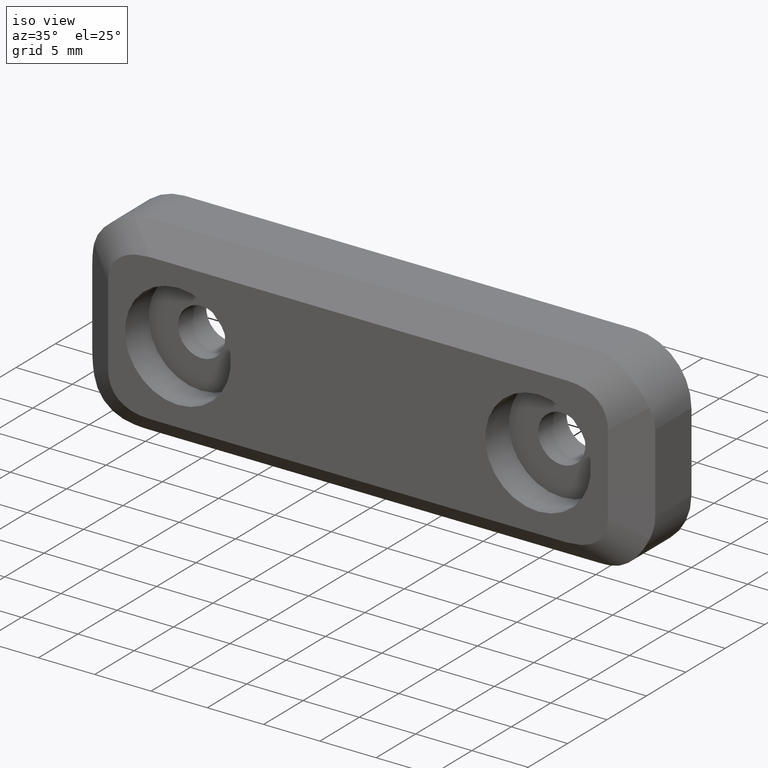
[diagram: clean part render]
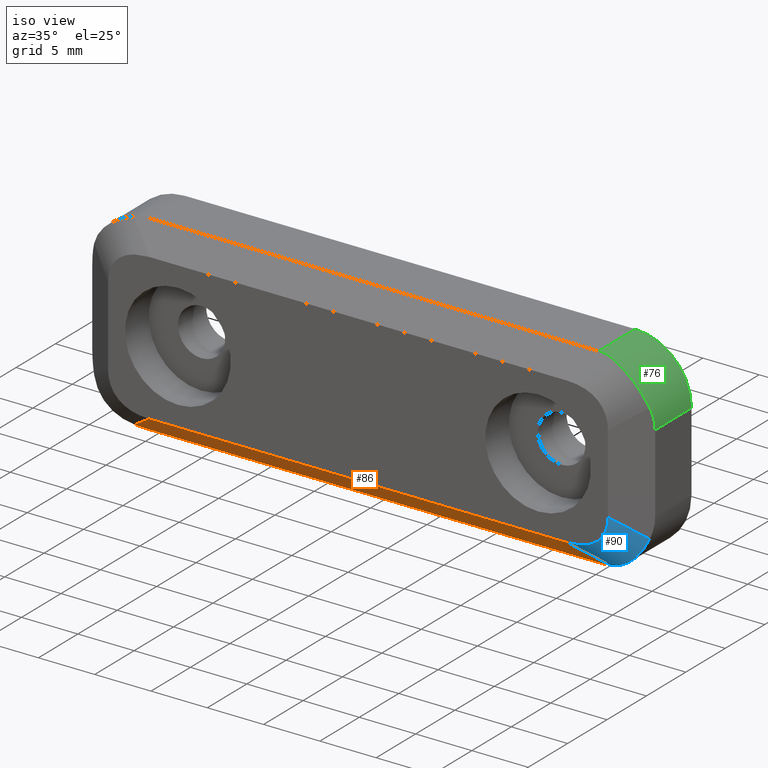
[diagram: same view with three faces highlighted in distinct colors, each labeled with its STEP entity id]
A machine part, iso view with three faces highlighted in distinct colors.
Their STEP definitions:

[orange] entity #86 — the highlighted planar face has unit normal (0, 0.7071, 0.7071).
#86=ADVANCED_FACE('',(#219),#218,.F.);
#218=PLANE('',#452);
#219=FACE_OUTER_BOUND('',#453,.T.);
#449=CARTESIAN_POINT('',(-2.53887898418E+01,-4.40000000000E+00,-8.70000000000E+00));
#450=DIRECTION('',(0.00000000000E+00,7.07106781187E-01,7.07106781187E-01));
#451=DIRECTION('',(0.00000000000E+00,-7.07106781187E-01,7.07106781187E-01));
#452=AXIS2_PLACEMENT_3D('',#449,#450,#451);
#453=EDGE_LOOP('',(#601,#602,#603,#604,#605,#606));
#601=ORIENTED_EDGE('',*,*,#732,.F.);
#602=ORIENTED_EDGE('',*,*,#679,.T.);
#603=ORIENTED_EDGE('',*,*,#733,.T.);
#604=ORIENTED_EDGE('',*,*,#723,.F.);
#605=ORIENTED_EDGE('',*,*,#701,.T.);
#606=ORIENTED_EDGE('',*,*,#707,.T.);
#679=EDGE_CURVE('',#751,#752,#753,.T.);
#701=EDGE_CURVE('',#884,#898,#905,.T.);
#707=EDGE_CURVE('',#898,#939,#947,.T.);
#723=EDGE_CURVE('',#884,#1052,#1053,.T.);
#732=EDGE_CURVE('',#751,#939,#1112,.T.);
#733=EDGE_CURVE('',#752,#1052,#1118,.T.);
#751=VERTEX_POINT('',#1231);
#752=VERTEX_POINT('',#1232);
#753=(BOUNDED_CURVE() B_SPLINE_CURVE(2,(#1233,#1234,#1235),.UNSPECIFIED.,.F.,.F.) B_SPLINE_CURVE_WITH_KNOTS((3,3),(-6.28318530718E+00,-6.04960202528E+00),.UNSPECIFIED.) CURVE() GEOMETRIC_REPRESENTATION_ITEM() RATIONAL_B_SPLINE_CURVE((1.00000000000E+00,9.93187605171E-01,1.00000000000E+00)) REPRESENTATION_ITEM('') );
#884=VERTEX_POINT('',#1342);
#898=VERTEX_POINT('',#1350);
#905=LINE('',#1365,#1366);
#939=VERTEX_POINT('',#1388);
#947=(BOUNDED_CURVE() B_SPLINE_CURVE(2,(#1393,#1394,#1395),.UNSPECIFIED.,.F.,.F.) B_SPLINE_CURVE_WITH_KNOTS((3,3),(-2.33583281902E-01,-0.00000000000E+00),.UNSPECIFIED.) CURVE() GEOMETRIC_REPRESENTATION_ITEM() RATIONAL_B_SPLINE_CURVE((1.00000000000E+00,9.93187605171E-01,1.00000000000E+00)) REPRESENTATION_ITEM('') );
#1052=VERTEX_POINT('',#1456);
#1053=LINE('',#1457,#1458);
#1112=LINE('',#1493,#1494);
#1118=LINE('',#1496,#1497);
#1231=CARTESIAN_POINT('',(2.00000000000E+01,-4.60000000000E+00,-8.50000000000E+00));
#1232=CARTESIAN_POINT('',(2.11573248682E+01,-4.73578380934E+00,-8.36421619066E+00));
#1233=CARTESIAN_POINT('',(2.00000000000E+01,-4.60000000000E+00,-8.50000000000E+00));
#1234=CARTESIAN_POINT('',(2.05866278911E+01,-4.60000000000E+00,-8.50000000000E+00));
#1235=CARTESIAN_POINT('',(2.11573248682E+01,-4.73578380934E+00,-8.36421619066E+00));
#1342=CARTESIAN_POINT('',(-1.85474222013E+01,-6.60000000000E+00,-6.50000000000E+00));
#1350=CARTESIAN_POINT('',(-2.11573248682E+01,-4.73578380934E+00,-8.36421619066E+00));
#1365=CARTESIAN_POINT('',(-1.85474222013E+01,-6.60000000000E+00,-6.50000000000E+00));
#1366=VECTOR('',#1367,3.70974337951E+00);
#1367=DIRECTION('',(-7.03526470682E-01,5.02518907630E-01,-5.02518907630E-01));
#1388=CARTESIAN_POINT('',(-2.00000000000E+01,-4.60000000000E+00,-8.50000000000E+00));
#1393=CARTESIAN_POINT('',(-2.11573248682E+01,-4.73578380934E+00,-8.36421619066E+00));
#1394=CARTESIAN_POINT('',(-2.05866278911E+01,-4.60000000000E+00,-8.50000000000E+00));
#1395=CARTESIAN_POINT('',(-2.00000000000E+01,-4.60000000000E+00,-8.50000000000E+00));
#1456=CARTESIAN_POINT('',(1.85474222013E+01,-6.60000000000E+00,-6.50000000000E+00));
#1457=CARTESIAN_POINT('',(-1.85474222013E+01,-6.60000000000E+00,-6.50000000000E+00));
#1458=VECTOR('',#1459,3.70948444025E+01);
#1459=DIRECTION('',(1.00000000000E+00,0.00000000000E+00,0.00000000000E+00));
#1493=CARTESIAN_POINT('',(2.00000000000E+01,-4.60000000000E+00,-8.50000000000E+00));
#1494=VECTOR('',#1495,4.00000000000E+01);
#1495=DIRECTION('',(-1.00000000000E+00,0.00000000000E+00,0.00000000000E+00));
#1496=CARTESIAN_POINT('',(2.11573248682E+01,-4.73578380934E+00,-8.36421619066E+00));
#1497=VECTOR('',#1498,3.70974337951E+00);
#1498=DIRECTION('',(-7.03526470682E-01,-5.02518907630E-01,5.02518907630E-01));

[blue] entity #90 — the highlighted cylindrical surface (partial cylindrical patch) has radius 5 mm, axis along (0.7035, 0.5025, -0.5025).
#90=ADVANCED_FACE('',(#259),#258,.T.);
#258=CYLINDRICAL_SURFACE('',#472,5.00000000000E+00);
#259=FACE_OUTER_BOUND('',#473,.T.);
#469=CARTESIAN_POINT('',(9.36738495013E+00,-9.62163555916E+00,3.59270337102E+00));
#470=DIRECTION('',(7.03526470682E-01,5.02518907630E-01,-5.02518907630E-01));
#471=DIRECTION('',(-5.81238193719E-01,-8.36862092340E-17,-8.13733471207E-01));
#472=AXIS2_PLACEMENT_3D('',#469,#470,#471);
#473=EDGE_LOOP('',(#625,#626,#627,#628));
#625=ORIENTED_EDGE('',*,*,#724,.F.);
#626=ORIENTED_EDGE('',*,*,#733,.F.);
#627=ORIENTED_EDGE('',*,*,#684,.F.);
#628=ORIENTED_EDGE('',*,*,#735,.F.);
#684=EDGE_CURVE('',#780,#752,#787,.T.);
#724=EDGE_CURVE('',#1052,#1059,#1060,.T.);
#733=EDGE_CURVE('',#752,#1052,#1118,.T.);
#735=EDGE_CURVE('',#1059,#780,#1130,.T.);
#752=VERTEX_POINT('',#1232);
#780=VERTEX_POINT('',#1249);
#787=(BOUNDED_CURVE() B_SPLINE_CURVE(3,(#1253,#1254,#1255,#1256,#1257,#1258,#1259,#1260,#1261,#1262,#1263,#1264,#1265,#1266),.UNSPECIFIED.,.F.,.F.) B_SPLINE_CURVE_WITH_KNOTS((4,2,2,2,2,2,4),(-4.90824634323E-03,-3.68118475742E-03,-3.06765396452E-03,-2.45412317161E-03,-1.84059237871E-03,-1.22706158581E-03,-0.00000000000E+00),.UNSPECIFIED.) CURVE() GEOMETRIC_REPRESENTATION_ITEM() RATIONAL_B_SPLINE_CURVE((1.00000000000E+00,1.00000000000E+00,1.00000000000E+00,1.00000000000E+00,1.00000000000E+00,1.00000000000E+00,1.00000000000E+00,1.00000000000E+00,1.00000000000E+00,1.00000000000E+00,1.00000000000E+00,1.00000000000E+00,1.00000000000E+00,1.00000000000E+00)) REPRESENTATION_ITEM('') );
#1052=VERTEX_POINT('',#1456);
#1059=VERTEX_POINT('',#1460);
#1060=(BOUNDED_CURVE() B_SPLINE_CURVE(2,(#1461,#1462,#1463),.UNSPECIFIED.,.F.,.F.) B_SPLINE_CURVE_WITH_KNOTS((3,3),(-3.75468145783E+00,-2.79697393528E+00),.UNSPECIFIED.) CURVE() GEOMETRIC_REPRESENTATION_ITEM() RATIONAL_B_SPLINE_CURVE((1.00000000000E+00,8.87523649141E-01,1.00000000000E+00)) REPRESENTATION_ITEM('') );
#1118=LINE('',#1496,#1497);
#1130=LINE('',#1502,#1503);
#1232=CARTESIAN_POINT('',(2.11573248682E+01,-4.73578380934E+00,-8.36421619066E+00));
#1249=CARTESIAN_POINT('',(2.46773188492E+01,-4.83048653627E+00,-5.26711300790E+00));
#1253=CARTESIAN_POINT('',(2.46773188492E+01,-4.83048653627E+00,-5.26711300790E+00));
#1254=CARTESIAN_POINT('',(2.45351442278E+01,-4.93203983728E+00,-5.64343078364E+00));
#1255=CARTESIAN_POINT('',(2.43467551379E+01,-5.00360393431E+00,-6.00432384448E+00));
#1256=CARTESIAN_POINT('',(2.39997594650E+01,-5.06739078605E+00,-6.50722525908E+00));
#1257=CARTESIAN_POINT('',(2.38720524416E+01,-5.08153356373E+00,-6.67014865487E+00));
#1258=CARTESIAN_POINT('',(2.35974899388E+01,-5.09522816680E+00,-6.97860586221E+00));
#1259=CARTESIAN_POINT('',(2.34520539393E+01,-5.09482975938E+00,-7.12283673382E+00));
#1260=CARTESIAN_POINT('',(2.31454236184E+01,-5.08093658207E+00,-7.39203451432E+00));
#1261=CARTESIAN_POINT('',(2.29842279747E+01,-5.06743344982E+00,-7.51699935949E+00));
#1262=CARTESIAN_POINT('',(2.26458862919E+01,-5.02816918211E+00,-7.74749175272E+00));
#1263=CARTESIAN_POINT('',(2.24680511663E+01,-5.00221437089E+00,-7.85315268349E+00));
#1264=CARTESIAN_POINT('',(2.19264859450E+01,-4.91010391662E+00,-8.13179352795E+00));
#1265=CARTESIAN_POINT('',(2.15500378682E+01,-4.82922055293E+00,-8.27077944707E+00));
#1266=CARTESIAN_POINT('',(2.11573248682E+01,-4.73578380934E+00,-8.36421619066E+00));
#1456=CARTESIAN_POINT('',(1.85474222013E+01,-6.60000000000E+00,-6.50000000000E+00));
#1460=CARTESIAN_POINT('',(2.22000000000E+01,-6.60000000000E+00,-3.49759954417E+00));
#1461=CARTESIAN_POINT('',(1.85474222013E+01,-6.60000000000E+00,-6.50000000000E+00));
#1462=CARTESIAN_POINT('',(2.22000000000E+01,-6.60000000000E+00,-6.50000000000E+00));
#1463=CARTESIAN_POINT('',(2.22000000000E+01,-6.60000000000E+00,-3.49759954417E+00));
#1496=CARTESIAN_POINT('',(2.11573248682E+01,-4.73578380934E+00,-8.36421619066E+00));
#1497=VECTOR('',#1498,3.70974337951E+00);
#1498=DIRECTION('',(-7.03526470682E-01,-5.02518907630E-01,5.02518907630E-01));
#1502=CARTESIAN_POINT('',(2.22000000000E+01,-6.60000000000E+00,-3.49759954417E+00));
#1503=VECTOR('',#1504,3.52128733241E+00);
#1504=DIRECTION('',(7.03526470682E-01,5.02518907630E-01,-5.02518907630E-01));

[green] entity #76 — the highlighted cylindrical surface (partial cylindrical patch) has radius 5 mm, axis along (-0, -1, -0).
#76=ADVANCED_FACE('',(#114),#113,.T.);
#113=CYLINDRICAL_SURFACE('',#397,5.00000000000E+00);
#114=FACE_OUTER_BOUND('',#398,.T.);
#394=CARTESIAN_POINT('',(2.00000000000E+01,-1.00000000000E+03,3.50000000000E+00));
#395=DIRECTION('',(-0.00000000000E+00,-1.00000000000E+00,-0.00000000000E+00));
#396=DIRECTION('',(-0.00000000000E+00,-0.00000000000E+00,-1.00000000000E+00));
#397=AXIS2_PLACEMENT_3D('',#394,#395,#396);
#398=EDGE_LOOP('',(#541,#542,#543,#544,#545,#546));
#541=ORIENTED_EDGE('',*,*,#685,.F.);
#542=ORIENTED_EDGE('',*,*,#686,.F.);
#543=ORIENTED_EDGE('',*,*,#687,.F.);
#544=ORIENTED_EDGE('',*,*,#688,.F.);
#545=ORIENTED_EDGE('',*,*,#689,.F.);
#546=ORIENTED_EDGE('',*,*,#690,.F.);
#685=EDGE_CURVE('',#793,#794,#795,.T.);
#686=EDGE_CURVE('',#801,#793,#802,.T.);
#687=EDGE_CURVE('',#808,#801,#809,.T.);
#688=EDGE_CURVE('',#815,#808,#816,.T.);
#689=EDGE_CURVE('',#822,#815,#823,.T.);
#690=EDGE_CURVE('',#794,#822,#829,.T.);
#793=VERTEX_POINT('',#1267);
#794=VERTEX_POINT('',#1268);
#795=LINE('',#1269,#1270);
#801=VERTEX_POINT('',#1272);
#802=(BOUNDED_CURVE() B_SPLINE_CURVE(2,(#1273,#1274,#1275),.UNSPECIFIED.,.F.,.F.) B_SPLINE_CURVE_WITH_KNOTS((3,3),(-2.33583281902E-01,-0.00000000000E+00),.UNSPECIFIED.) CURVE() GEOMETRIC_REPRESENTATION_ITEM() RATIONAL_B_SPLINE_CURVE((1.00000000000E+00,9.93187605171E-01,1.00000000000E+00)) REPRESENTATION_ITEM('') );
#808=VERTEX_POINT('',#1276);
#809=(BOUNDED_CURVE() B_SPLINE_CURVE(3,(#1277,#1278,#1279,#1280,#1281,#1282,#1283,#1284,#1285,#1286,#1287,#1288,#1289,#1290),.UNSPECIFIED.,.F.,.F.) B_SPLINE_CURVE_WITH_KNOTS((4,2,2,2,2,2,4),(-4.90824634323E-03,-3.68118475742E-03,-3.06765396452E-03,-2.45412317161E-03,-1.84059237871E-03,-1.22706158581E-03,-0.00000000000E+00),.UNSPECIFIED.) CURVE() GEOMETRIC_REPRESENTATION_ITEM() RATIONAL_B_SPLINE_CURVE((1.00000000000E+00,1.00000000000E+00,1.00000000000E+00,1.00000000000E+00,1.00000000000E+00,1.00000000000E+00,1.00000000000E+00,1.00000000000E+00,1.00000000000E+00,1.00000000000E+00,1.00000000000E+00,1.00000000000E+00,1.00000000000E+00,1.00000000000E+00)) REPRESENTATION_ITEM('') );
#815=VERTEX_POINT('',#1291);
#816=(BOUNDED_CURVE() B_SPLINE_CURVE(2,(#1292,#1293,#1294),.UNSPECIFIED.,.F.,.F.) B_SPLINE_CURVE_WITH_KNOTS((3,3),(-6.28318530718E+00,-5.92195799892E+00),.UNSPECIFIED.) CURVE() GEOMETRIC_REPRESENTATION_ITEM() RATIONAL_B_SPLINE_CURVE((1.00000000000E+00,9.83733645314E-01,1.00000000000E+00)) REPRESENTATION_ITEM('') );
#822=VERTEX_POINT('',#1295);
#823=LINE('',#1296,#1297);
#829=CIRCLE('',#1302,5.00000000000E+00);
#1267=CARTESIAN_POINT('',(2.00000000000E+01,-4.60000000000E+00,8.50000000000E+00));
#1268=CARTESIAN_POINT('',(2.00000000000E+01,0.00000000000E+00,8.50000000000E+00));
#1269=CARTESIAN_POINT('',(2.00000000000E+01,-4.60000000000E+00,8.50000000000E+00));
#1270=VECTOR('',#1271,4.60000000000E+00);
#1271=DIRECTION('',(0.00000000000E+00,1.00000000000E+00,0.00000000000E+00));
#1272=CARTESIAN_POINT('',(2.11573248682E+01,-4.73578380934E+00,8.36421619066E+00));
#1273=CARTESIAN_POINT('',(2.11573248682E+01,-4.73578380934E+00,8.36421619066E+00));
#1274=CARTESIAN_POINT('',(2.05866278911E+01,-4.60000000000E+00,8.50000000000E+00));
#1275=CARTESIAN_POINT('',(2.00000000000E+01,-4.60000000000E+00,8.50000000000E+00));
#1276=CARTESIAN_POINT('',(2.46773188492E+01,-4.83048653627E+00,5.26711300790E+00));
#1277=CARTESIAN_POINT('',(2.46773188492E+01,-4.83048653627E+00,5.26711300790E+00));
#1278=CARTESIAN_POINT('',(2.45351442278E+01,-4.93203983728E+00,5.64343078364E+00));
#1279=CARTESIAN_POINT('',(2.43467551379E+01,-5.00360393431E+00,6.00432384448E+00));
#1280=CARTESIAN_POINT('',(2.39997594650E+01,-5.06739078605E+00,6.50722525908E+00));
#1281=CARTESIAN_POINT('',(2.38720524415E+01,-5.08153356373E+00,6.67014865487E+00));
#1282=CARTESIAN_POINT('',(2.35974899388E+01,-5.09522816680E+00,6.97860586221E+00));
#1283=CARTESIAN_POINT('',(2.34520539393E+01,-5.09482975938E+00,7.12283673382E+00));
#1284=CARTESIAN_POINT('',(2.31454236184E+01,-5.08093658207E+00,7.39203451432E+00));
#1285=CARTESIAN_POINT('',(2.29842279747E+01,-5.06743344982E+00,7.51699935949E+00));
#1286=CARTESIAN_POINT('',(2.26458862919E+01,-5.02816918211E+00,7.74749175272E+00));
#1287=CARTESIAN_POINT('',(2.24680511663E+01,-5.00221437089E+00,7.85315268349E+00));
#1288=CARTESIAN_POINT('',(2.19264859450E+01,-4.91010391662E+00,8.13179352795E+00));
#1289=CARTESIAN_POINT('',(2.15500378682E+01,-4.82922055293E+00,8.27077944707E+00));
#1290=CARTESIAN_POINT('',(2.11573248682E+01,-4.73578380934E+00,8.36421619066E+00));
#1291=CARTESIAN_POINT('',(2.50000000000E+01,-4.60000000000E+00,3.50000000000E+00));
#1292=CARTESIAN_POINT('',(2.50000000000E+01,-4.60000000000E+00,3.50000000000E+00));
#1293=CARTESIAN_POINT('',(2.50000000000E+01,-4.60000000000E+00,4.41301786964E+00));
#1294=CARTESIAN_POINT('',(2.46773188492E+01,-4.83048653627E+00,5.26711300790E+00));
#1295=CARTESIAN_POINT('',(2.50000000000E+01,0.00000000000E+00,3.50000000000E+00));
#1296=CARTESIAN_POINT('',(2.50000000000E+01,0.00000000000E+00,3.50000000000E+00));
#1297=VECTOR('',#1298,4.60000000000E+00);
#1298=DIRECTION('',(0.00000000000E+00,-1.00000000000E+00,0.00000000000E+00));
#1299=CARTESIAN_POINT('',(2.00000000000E+01,0.00000000000E+00,3.50000000000E+00));
#1300=DIRECTION('',(0.00000000000E+00,1.00000000000E+00,-0.00000000000E+00));
#1301=DIRECTION('',(-0.00000000000E+00,-0.00000000000E+00,-1.00000000000E+00));
#1302=AXIS2_PLACEMENT_3D('',#1299,#1300,#1301);